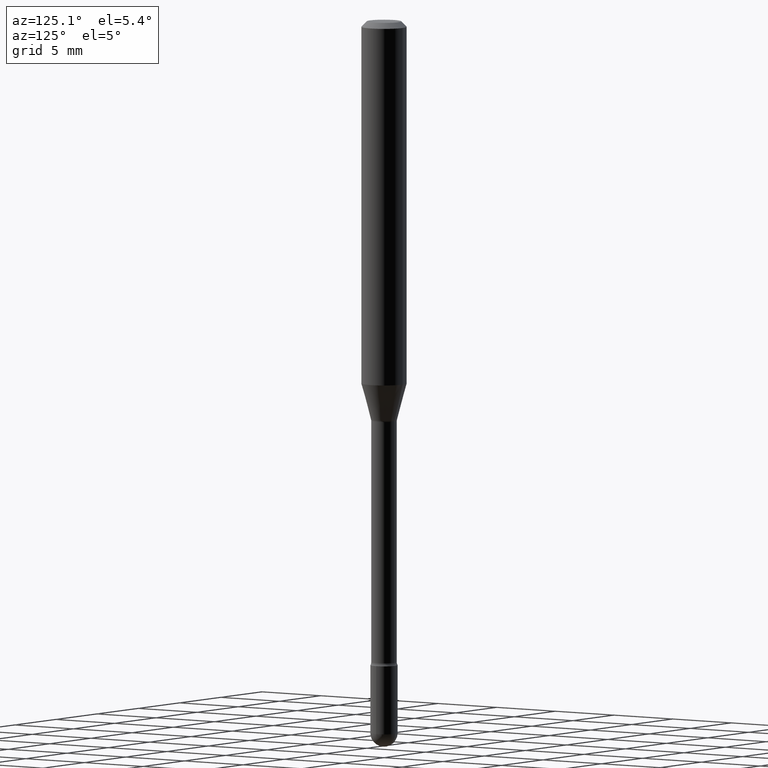
[diagram: clean part render]
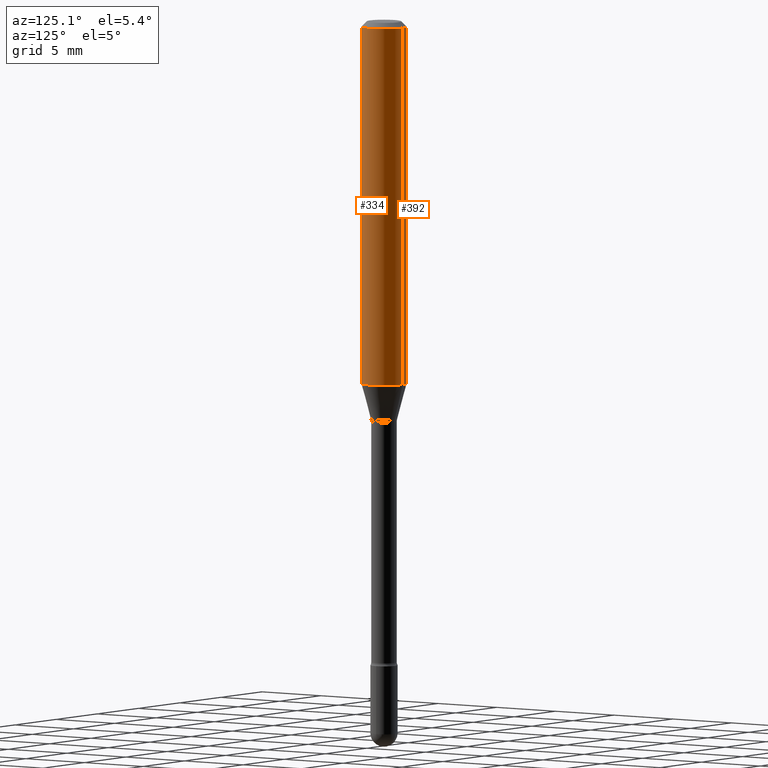
[diagram: same view with one multi-face feature highlighted, each face labeled with its STEP entity id]
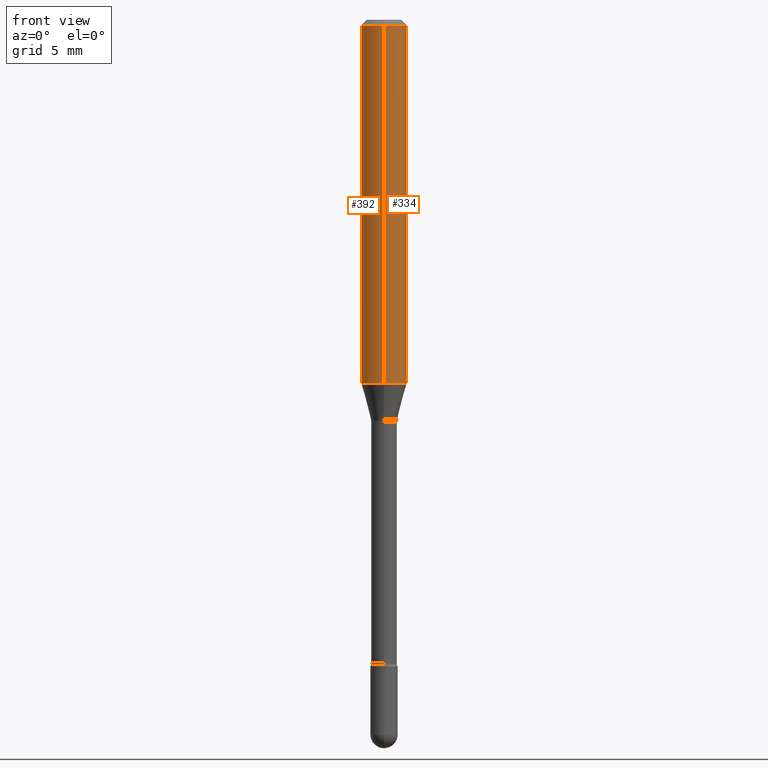
[diagram: same view with one multi-face feature highlighted, each face labeled with its STEP entity id]
A machine part, auxiliary view. The highlighted faces form ONE feature: a constant-radius fillet chain: 2 tangent blend faces with common blend radius 1.5875 mm. The faces share edges in the B-rep.
A second angle (front view) of the same feature is appended — it is thin or edge-on in the first view.
Their STEP definitions:
[1] entity #392 (Cylinder):
#2 = DIRECTION ( 'NONE',  ( -2.445449487878579082E-29, 3.491509003757665551E-15, 1.000000000000000000 ) ) ;
#22 = EDGE_CURVE ( 'NONE', #264, #332, #346, .T. ) ;
#42 = DIRECTION ( 'NONE',  ( -2.445449487878579082E-29, 3.491509003757665551E-15, 1.000000000000000000 ) ) ;
#70 = CIRCLE ( 'NONE', #393, 0.06250000000000000000 ) ;
#74 = LINE ( 'NONE', #258, #324 ) ;
#106 = CARTESIAN_POINT ( 'NONE',  ( 4.440892098500869722E-16, 0.06249999999999652361, -0.9983016154937485176 ) ) ;
#118 = CARTESIAN_POINT ( 'NONE',  ( 3.668174231817888906E-31, -5.237263505636527144E-17, -0.01500000000000008271 ) ) ;
#133 = ORIENTED_EDGE ( 'NONE', *, *, #253, .T. ) ;
#139 = CARTESIAN_POINT ( 'NONE',  ( -4.364351673553671654E-16, -0.06250000000000346945, -0.9983016154937480735 ) ) ;
#152 = CARTESIAN_POINT ( 'NONE',  ( 4.440892098500871695E-16, 0.06249999999999995837, -0.01500000000000030129 ) ) ;
#157 = CARTESIAN_POINT ( 'NONE',  ( -1.169113584055446105E-44, 1.669184350826100908E-30, 4.780733988912460139E-16 ) ) ;
#175 = CARTESIAN_POINT ( 'NONE',  ( 2.441296174357545252E-29, -3.485579078962245490E-15, -0.9983016154937482955 ) ) ;
#177 = CARTESIAN_POINT ( 'NONE',  ( -4.364351673553916201E-16, -0.06250000000000000000, 6.962927116261001108E-16 ) ) ;
#178 = AXIS2_PLACEMENT_3D ( 'NONE', #118, #42, #391 ) ;
#218 = ORIENTED_EDGE ( 'NONE', *, *, #226, .F. ) ;
#226 = EDGE_CURVE ( 'NONE', #460, #332, #422, .T. ) ;
#245 = AXIS2_PLACEMENT_3D ( 'NONE', #157, #355, #320 ) ;
#248 = EDGE_CURVE ( 'NONE', #462, #460, #74, .T. ) ;
#251 = ORIENTED_EDGE ( 'NONE', *, *, #248, .F. ) ;
#253 = EDGE_CURVE ( 'NONE', #462, #264, #70, .T. ) ;
#255 = DIRECTION ( 'NONE',  ( -2.445449487878579082E-29, 3.491509003757665551E-15, 1.000000000000000000 ) ) ;
#258 = CARTESIAN_POINT ( 'NONE',  ( 4.440892098500625669E-16, 0.06250000000000000000, 2.598540861563919663E-16 ) ) ;
#264 = VERTEX_POINT ( 'NONE', #139 ) ;
#272 = VECTOR ( 'NONE', #2, 39.37007874015748143 ) ;
#320 = DIRECTION ( 'NONE',  ( -6.982962677686265922E-15, -1.000000000000000000, 3.491509003757665551E-15 ) ) ;
#324 = VECTOR ( 'NONE', #255, 39.37007874015748143 ) ;
#332 = VERTEX_POINT ( 'NONE', #564 ) ;
#346 = LINE ( 'NONE', #177, #272 ) ;
#355 = DIRECTION ( 'NONE',  ( -2.445449487878579082E-29, 3.491509003757665551E-15, 1.000000000000000000 ) ) ;
#391 = DIRECTION ( 'NONE',  ( -6.982962677686265922E-15, -1.000000000000000000, 3.483106191921935554E-15 ) ) ;
#392 = ADVANCED_FACE ( 'NONE', ( #472 ), #538, .T. ) ;
#393 = AXIS2_PLACEMENT_3D ( 'NONE', #175, #483, #432 ) ;
#422 = CIRCLE ( 'NONE', #178, 0.06250000000000000000 ) ;
#432 = DIRECTION ( 'NONE',  ( -6.982962677686265922E-15, -1.000000000000000000, 4.370956789862821150E-15 ) ) ;
#450 = ORIENTED_EDGE ( 'NONE', *, *, #22, .T. ) ;
#460 = VERTEX_POINT ( 'NONE', #152 ) ;
#462 = VERTEX_POINT ( 'NONE', #106 ) ;
#472 = FACE_OUTER_BOUND ( 'NONE', #480, .T. ) ;
#480 = EDGE_LOOP ( 'NONE', ( #251, #133, #450, #218 ) ) ;
#483 = DIRECTION ( 'NONE',  ( -2.445449487878579082E-29, 3.491509003757665551E-15, 1.000000000000000000 ) ) ;
#538 = CYLINDRICAL_SURFACE ( 'NONE', #245, 0.06250000000000000000 ) ;
#564 = CARTESIAN_POINT ( 'NONE',  ( -4.364351673553912750E-16, -0.06250000000000005551, -0.01499999999999986587 ) ) ;
[2] entity #334 (Cylinder):
#2 = DIRECTION ( 'NONE',  ( -2.445449487878579082E-29, 3.491509003757665551E-15, 1.000000000000000000 ) ) ;
#11 = DIRECTION ( 'NONE',  ( -2.445449487878579082E-29, 3.491509003757665551E-15, 1.000000000000000000 ) ) ;
#22 = EDGE_CURVE ( 'NONE', #264, #332, #346, .T. ) ;
#24 = AXIS2_PLACEMENT_3D ( 'NONE', #402, #11, #188 ) ;
#45 = EDGE_CURVE ( 'NONE', #332, #460, #136, .T. ) ;
#51 = ORIENTED_EDGE ( 'NONE', *, *, #22, .F. ) ;
#66 = DIRECTION ( 'NONE',  ( -6.982962677686265922E-15, -1.000000000000000000, 3.491509003757665551E-15 ) ) ;
#74 = LINE ( 'NONE', #258, #324 ) ;
#83 = DIRECTION ( 'NONE',  ( -6.982962677686265922E-15, -1.000000000000000000, 4.370956789862821150E-15 ) ) ;
#106 = CARTESIAN_POINT ( 'NONE',  ( 4.440892098500869722E-16, 0.06249999999999652361, -0.9983016154937485176 ) ) ;
#113 = DIRECTION ( 'NONE',  ( -2.445449487878579082E-29, 3.491509003757665551E-15, 1.000000000000000000 ) ) ;
#123 = EDGE_CURVE ( 'NONE', #264, #462, #463, .T. ) ;
#131 = CARTESIAN_POINT ( 'NONE',  ( 2.441296174357545252E-29, -3.485579078962245490E-15, -0.9983016154937482955 ) ) ;
#136 = CIRCLE ( 'NONE', #24, 0.06250000000000000000 ) ;
#139 = CARTESIAN_POINT ( 'NONE',  ( -4.364351673553671654E-16, -0.06250000000000346945, -0.9983016154937480735 ) ) ;
#152 = CARTESIAN_POINT ( 'NONE',  ( 4.440892098500871695E-16, 0.06249999999999995837, -0.01500000000000030129 ) ) ;
#170 = AXIS2_PLACEMENT_3D ( 'NONE', #131, #471, #83 ) ;
#177 = CARTESIAN_POINT ( 'NONE',  ( -4.364351673553916201E-16, -0.06250000000000000000, 6.962927116261001108E-16 ) ) ;
#188 = DIRECTION ( 'NONE',  ( -6.982962677686265922E-15, -1.000000000000000000, 3.483106191921935554E-15 ) ) ;
#210 = ORIENTED_EDGE ( 'NONE', *, *, #45, .F. ) ;
#248 = EDGE_CURVE ( 'NONE', #462, #460, #74, .T. ) ;
#255 = DIRECTION ( 'NONE',  ( -2.445449487878579082E-29, 3.491509003757665551E-15, 1.000000000000000000 ) ) ;
#258 = CARTESIAN_POINT ( 'NONE',  ( 4.440892098500625669E-16, 0.06250000000000000000, 2.598540861563919663E-16 ) ) ;
#264 = VERTEX_POINT ( 'NONE', #139 ) ;
#272 = VECTOR ( 'NONE', #2, 39.37007874015748143 ) ;
#314 = EDGE_LOOP ( 'NONE', ( #475, #398, #210, #51 ) ) ;
#324 = VECTOR ( 'NONE', #255, 39.37007874015748143 ) ;
#332 = VERTEX_POINT ( 'NONE', #564 ) ;
#334 = ADVANCED_FACE ( 'NONE', ( #384 ), #427, .T. ) ;
#346 = LINE ( 'NONE', #177, #272 ) ;
#384 = FACE_OUTER_BOUND ( 'NONE', #314, .T. ) ;
#398 = ORIENTED_EDGE ( 'NONE', *, *, #248, .T. ) ;
#402 = CARTESIAN_POINT ( 'NONE',  ( 3.668174231817888906E-31, -5.237263505636527144E-17, -0.01500000000000008271 ) ) ;
#427 = CYLINDRICAL_SURFACE ( 'NONE', #487, 0.06250000000000000000 ) ;
#460 = VERTEX_POINT ( 'NONE', #152 ) ;
#462 = VERTEX_POINT ( 'NONE', #106 ) ;
#463 = CIRCLE ( 'NONE', #170, 0.06250000000000000000 ) ;
#471 = DIRECTION ( 'NONE',  ( -2.445449487878579082E-29, 3.491509003757665551E-15, 1.000000000000000000 ) ) ;
#475 = ORIENTED_EDGE ( 'NONE', *, *, #123, .T. ) ;
#487 = AXIS2_PLACEMENT_3D ( 'NONE', #512, #113, #66 ) ;
#512 = CARTESIAN_POINT ( 'NONE',  ( -1.169113584055446105E-44, 1.669184350826100908E-30, 4.780733988912460139E-16 ) ) ;
#564 = CARTESIAN_POINT ( 'NONE',  ( -4.364351673553912750E-16, -0.06250000000000005551, -0.01499999999999986587 ) ) ;